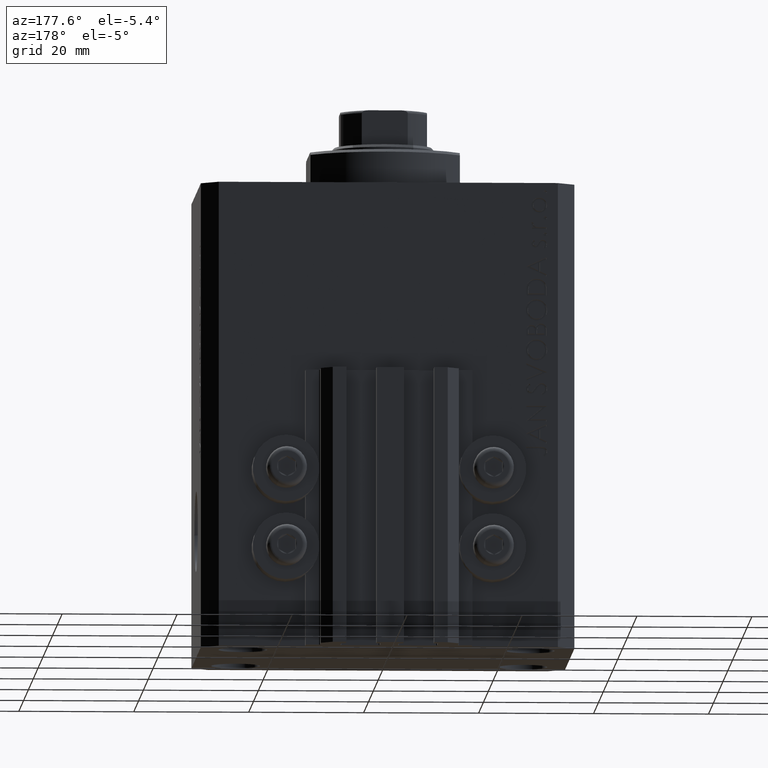
[diagram: clean part render]
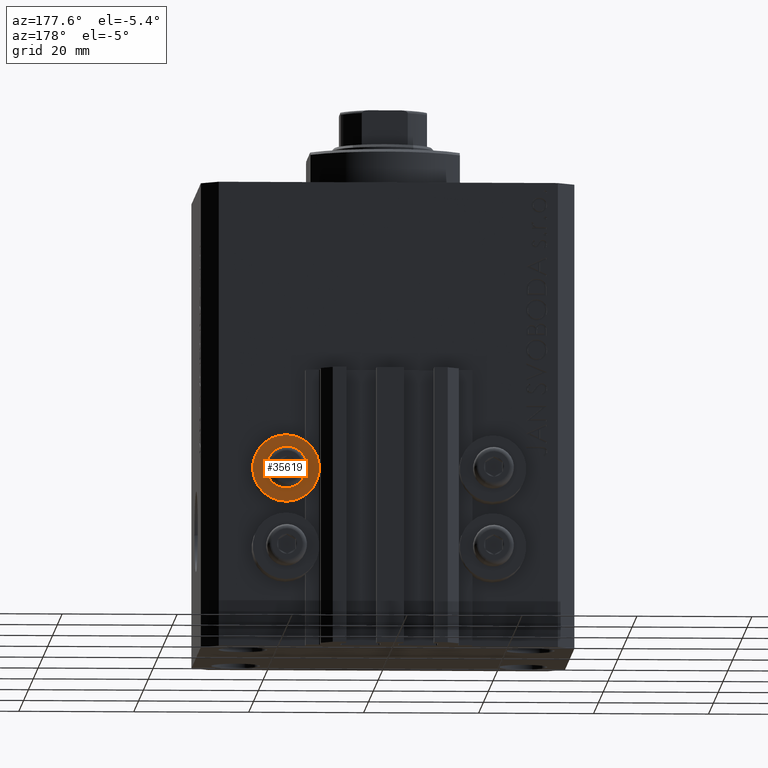
[diagram: same view with one face highlighted and labeled with its STEP entity id]
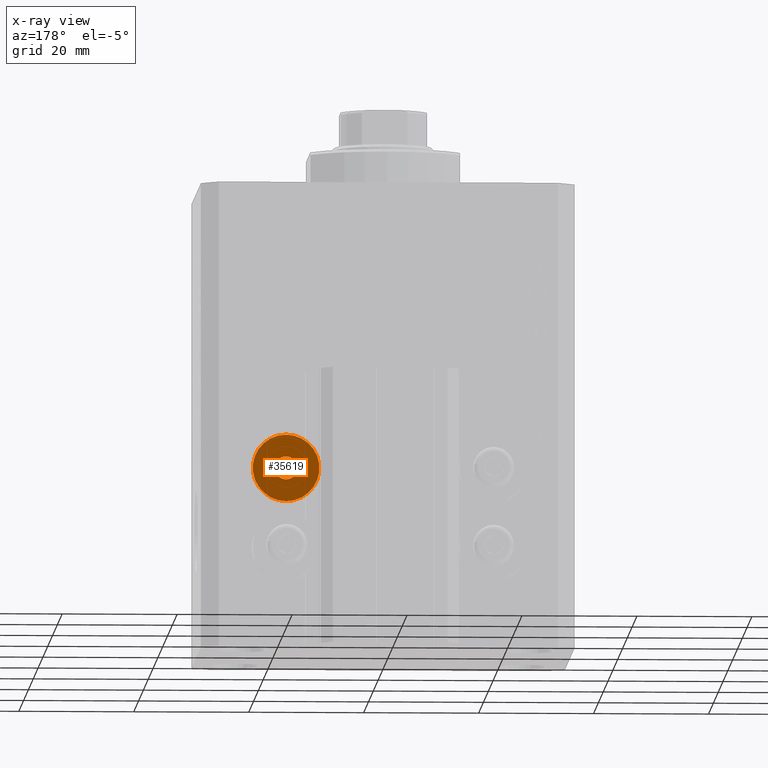
[diagram: x-ray of the same camera — body ghosted, the highlighted face saturated]
A machine part, auxiliary view. The second image highlights one B-rep face of the part: STEP entity #35619.
The next image is the same camera in x-ray: the body ghosted, the highlighted face saturated — about 0% of this face is hidden behind the body in this view.
In plain terms, the highlighted planar face has unit normal (0, -1, 0).
Its self-contained STEP definition (entity closure, byte-faithful):
#386 = DIRECTION ( 'NONE',  ( -0.000000000000000000, -1.000000000000000000, -0.000000000000000000 ) ) ;
#485 = EDGE_CURVE ( 'NONE', #19934, #24620, #39357, .T. ) ;
#2181 = DIRECTION ( 'NONE',  ( -0.000000000000000000, -1.000000000000000000, -0.000000000000000000 ) ) ;
#3410 = PLANE ( 'NONE',  #36622 ) ;
#4786 = CARTESIAN_POINT ( 'NONE',  ( 18.00000000000000355, 27.49999999996051514, -44.60000000000000142 ) ) ;
#7301 = VERTEX_POINT ( 'NONE', #41646 ) ;
#8056 = EDGE_CURVE ( 'NONE', #7301, #37859, #21715, .T. ) ;
#8407 = EDGE_CURVE ( 'NONE', #24620, #19934, #27817, .T. ) ;
#9620 = ORIENTED_EDGE ( 'NONE', *, *, #8407, .F. ) ;
#9628 = DIRECTION ( 'NONE',  ( -0.000000000000000000, 0.000000000000000000, -1.000000000000000000 ) ) ;
#9818 = CARTESIAN_POINT ( 'NONE',  ( 18.00000000000000355, 27.49999999996051514, -50.39999999999999858 ) ) ;
#12467 = ORIENTED_EDGE ( 'NONE', *, *, #8056, .T. ) ;
#13568 = CARTESIAN_POINT ( 'NONE',  ( 18.00000000000000355, 27.49999999996051514, -48.39999999999999858 ) ) ;
#15208 = DIRECTION ( 'NONE',  ( 0.000000000000000000, 0.000000000000000000, 1.000000000000000000 ) ) ;
#15428 = CARTESIAN_POINT ( 'NONE',  ( 18.00000000000000355, 27.49999999996051514, -50.39999999999999858 ) ) ;
#15799 = AXIS2_PLACEMENT_3D ( 'NONE', #15428, #18768, #39772 ) ;
#15825 = EDGE_LOOP ( 'NONE', ( #9620, #32370 ) ) ;
#16521 = AXIS2_PLACEMENT_3D ( 'NONE', #44766, #386, #15208 ) ;
#17284 = FACE_BOUND ( 'NONE', #35801, .T. ) ;
#17969 = CARTESIAN_POINT ( 'NONE',  ( 12.20000000000000284, 27.49999999996051514, -50.39999999999999858 ) ) ;
#18560 = DIRECTION ( 'NONE',  ( -0.000000000000000000, -1.000000000000000000, -0.000000000000000000 ) ) ;
#18768 = DIRECTION ( 'NONE',  ( -0.000000000000000000, -1.000000000000000000, -0.000000000000000000 ) ) ;
#19934 = VERTEX_POINT ( 'NONE', #30162 ) ;
#21545 = FACE_OUTER_BOUND ( 'NONE', #15825, .T. ) ;
#21715 = CIRCLE ( 'NONE', #36186, 2.000000000000001776 ) ;
#24379 = DIRECTION ( 'NONE',  ( 0.000000000000000000, 0.000000000000000000, 1.000000000000000000 ) ) ;
#24620 = VERTEX_POINT ( 'NONE', #4786 ) ;
#24781 = DIRECTION ( 'NONE',  ( 0.000000000000000000, 0.000000000000000000, 1.000000000000000000 ) ) ;
#26230 = EDGE_CURVE ( 'NONE', #37859, #7301, #29503, .T. ) ;
#27817 = CIRCLE ( 'NONE', #30869, 5.799999999999999822 ) ;
#29503 = CIRCLE ( 'NONE', #15799, 2.000000000000001776 ) ;
#30162 = CARTESIAN_POINT ( 'NONE',  ( 18.00000000000000355, 27.49999999996051514, -56.20000000000000284 ) ) ;
#30869 = AXIS2_PLACEMENT_3D ( 'NONE', #36682, #18560, #24781 ) ;
#32370 = ORIENTED_EDGE ( 'NONE', *, *, #485, .F. ) ;
#35619 = ADVANCED_FACE ( 'NONE', ( #17284, #21545 ), #3410, .F. ) ;
#35801 = EDGE_LOOP ( 'NONE', ( #40592, #12467 ) ) ;
#36186 = AXIS2_PLACEMENT_3D ( 'NONE', #9818, #2181, #24379 ) ;
#36622 = AXIS2_PLACEMENT_3D ( 'NONE', #17969, #46611, #9628 ) ;
#36682 = CARTESIAN_POINT ( 'NONE',  ( 18.00000000000000355, 27.49999999996051514, -50.39999999999999858 ) ) ;
#37859 = VERTEX_POINT ( 'NONE', #13568 ) ;
#39357 = CIRCLE ( 'NONE', #16521, 5.799999999999999822 ) ;
#39772 = DIRECTION ( 'NONE',  ( 0.000000000000000000, 0.000000000000000000, 1.000000000000000000 ) ) ;
#40592 = ORIENTED_EDGE ( 'NONE', *, *, #26230, .T. ) ;
#41646 = CARTESIAN_POINT ( 'NONE',  ( 18.00000000000000355, 27.49999999996051514, -52.40000000000000568 ) ) ;
#44766 = CARTESIAN_POINT ( 'NONE',  ( 18.00000000000000355, 27.49999999996051514, -50.39999999999999858 ) ) ;
#46611 = DIRECTION ( 'NONE',  ( 0.000000000000000000, -1.000000000000000000, -0.000000000000000000 ) ) ;